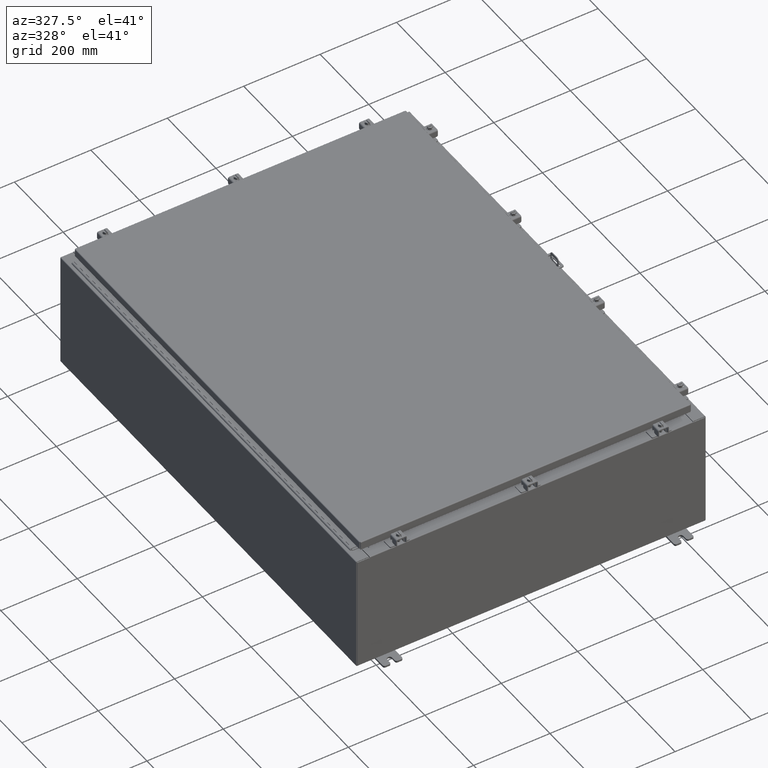
[diagram: clean part render]
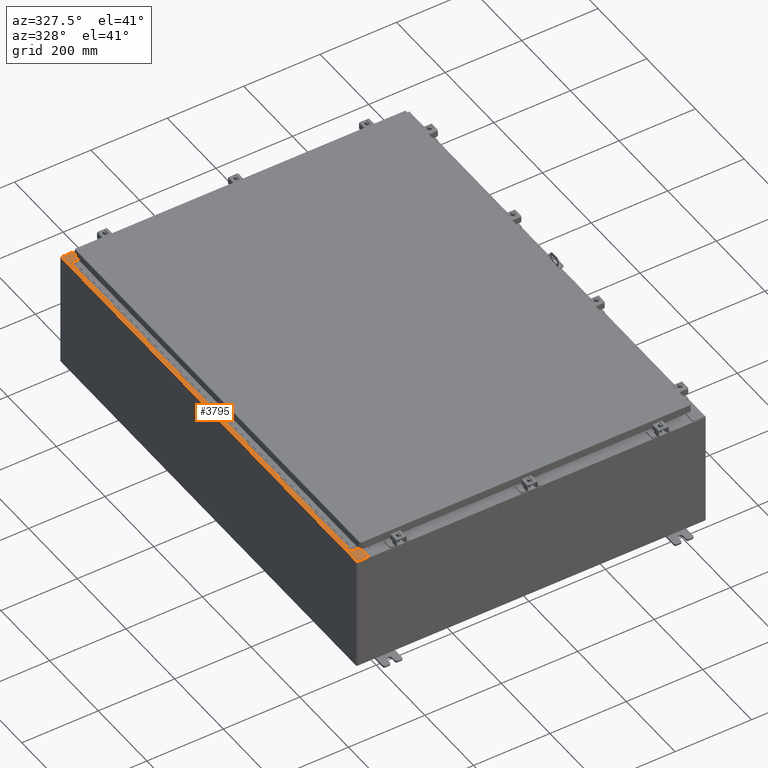
[diagram: same view with one face highlighted and labeled with its STEP entity id]
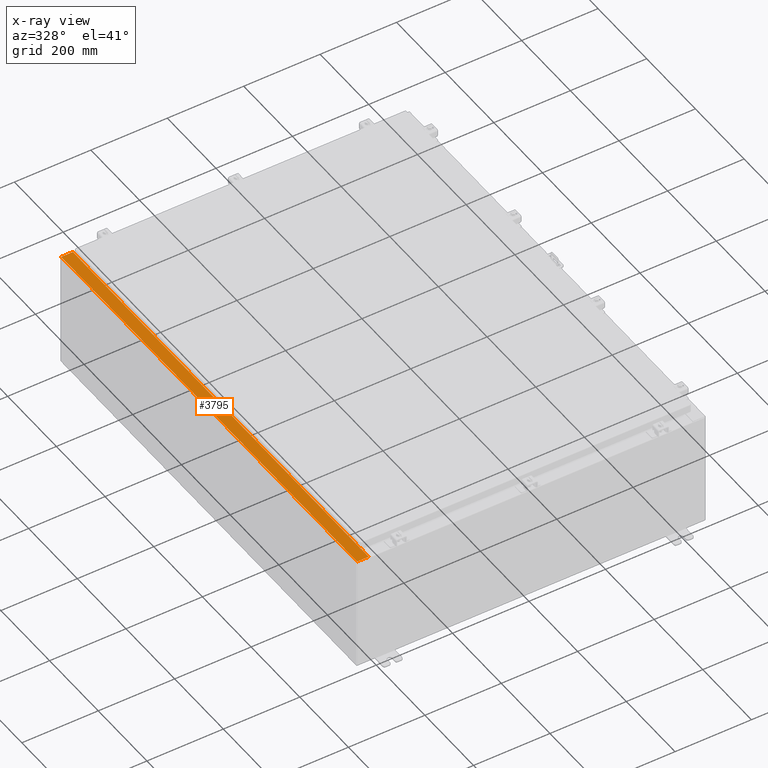
[diagram: x-ray of the same camera — body ghosted, the highlighted face saturated]
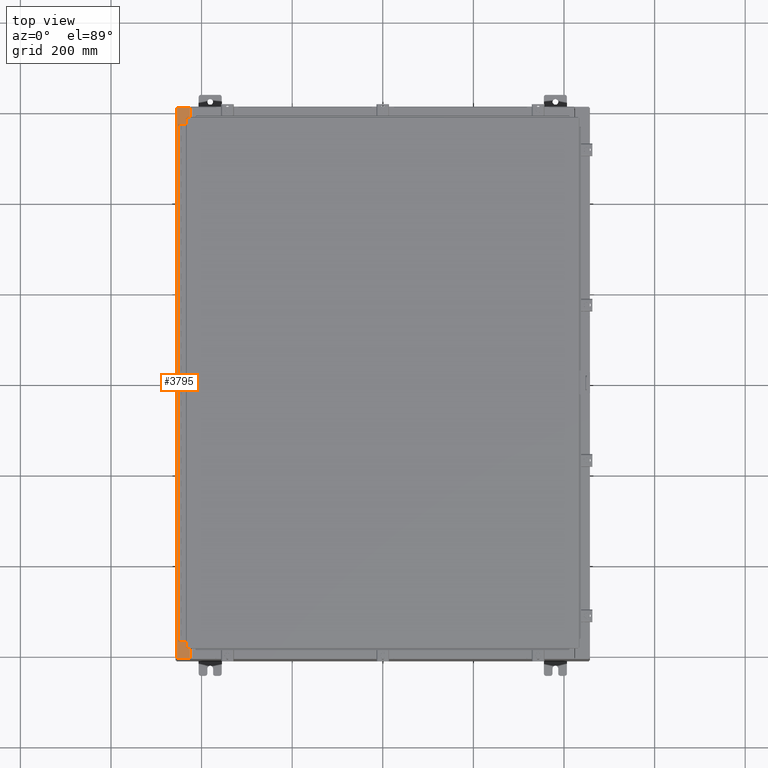
[diagram: same view with one face highlighted and labeled with its STEP entity id]
A machine part, auxiliary view. The second image highlights one B-rep face of the part: STEP entity #3795.
The next image is the same camera in x-ray: the body ghosted, the highlighted face saturated — about 0% of this face is hidden behind the body in this view.
A second angle (top view) of the same face is appended — the face is thin or edge-on in the first view.
In plain terms, the highlighted planar face has unit normal (0, 0, -1).
Its self-contained STEP definition (entity closure, byte-faithful):
#448 = VERTEX_POINT ( 'NONE', #5758 ) ;
#741 = VERTEX_POINT ( 'NONE', #24958 ) ;
#1012 = VERTEX_POINT ( 'NONE', #35386 ) ;
#2481 = LINE ( 'NONE', #40963, #46577 ) ;
#3022 = EDGE_CURVE ( 'NONE', #448, #17920, #8667, .T. ) ;
#3795 = ADVANCED_FACE ( 'NONE', ( #50644 ), #13534, .F. ) ;
#4187 = CIRCLE ( 'NONE', #23462, 0.01867499999999949400 ) ;
#4341 = EDGE_CURVE ( 'NONE', #50712, #16208, #2481, .T. ) ;
#5609 = LINE ( 'NONE', #25935, #25651 ) ;
#5758 = CARTESIAN_POINT ( 'NONE',  ( -16.69970000000004600, -23.92529999999998600, 11.92530000000000900 ) ) ;
#7194 = EDGE_CURVE ( 'NONE', #47060, #11053, #5609, .T. ) ;
#7280 = DIRECTION ( 'NONE',  ( 1.000000000000000000, 0.0000000000000000000, 0.0000000000000000000 ) ) ;
#7644 = ORIENTED_EDGE ( 'NONE', *, *, #27261, .T. ) ;
#7645 = CARTESIAN_POINT ( 'NONE',  ( -16.69970000000004600, 23.92529999999998900, 11.92530000000000900 ) ) ;
#7913 = CARTESIAN_POINT ( 'NONE',  ( -17.91230000000004500, 23.92529999999998900, 11.92530000000000400 ) ) ;
#8667 = LINE ( 'NONE', #18709, #52722 ) ;
#11053 = VERTEX_POINT ( 'NONE', #20915 ) ;
#11597 = EDGE_CURVE ( 'NONE', #1012, #17920, #48693, .T. ) ;
#11620 = CARTESIAN_POINT ( 'NONE',  ( -17.91230000000004500, -23.92529999999998600, 11.92530000000000400 ) ) ;
#11803 = LINE ( 'NONE', #45237, #24504 ) ;
#11878 = CARTESIAN_POINT ( 'NONE',  ( -1.706478848839187100E-013, -23.92530000000005300, 11.92530000000013000 ) ) ;
#13534 = PLANE ( 'NONE',  #54629 ) ;
#14363 = CARTESIAN_POINT ( 'NONE',  ( -16.75005000000004800, 22.61242499999999100, 11.92530000000001200 ) ) ;
#14390 = DIRECTION ( 'NONE',  ( 0.0000000000000000000, 1.000000000000000000, 0.0000000000000000000 ) ) ;
#14928 = EDGE_CURVE ( 'NONE', #43817, #48749, #34189, .T. ) ;
#15277 = DIRECTION ( 'NONE',  ( -0.0000000000000000000, -1.000000000000000000, -0.0000000000000000000 ) ) ;
#15286 = LINE ( 'NONE', #35188, #38001 ) ;
#15977 = VECTOR ( 'NONE', #50926, 39.37007874015748100 ) ;
#16169 = DIRECTION ( 'NONE',  ( 1.000000000000000000, -3.566381192773192400E-015, 7.132762385546384700E-015 ) ) ;
#16208 = VERTEX_POINT ( 'NONE', #7913 ) ;
#17920 = VERTEX_POINT ( 'NONE', #42421 ) ;
#18363 = VECTOR ( 'NONE', #16169, 39.37007874015748100 ) ;
#18655 = AXIS2_PLACEMENT_3D ( 'NONE', #14363, #44232, #18692 ) ;
#18692 = DIRECTION ( 'NONE',  ( 1.000000000000000000, 0.0000000000000000000, 0.0000000000000000000 ) ) ;
#18709 = CARTESIAN_POINT ( 'NONE',  ( -16.69970000000004600, 0.0000000000000000000, 11.92530000000000900 ) ) ;
#18935 = CARTESIAN_POINT ( 'NONE',  ( -16.75005000000004800, -22.59374999999998200, 11.92530000000000900 ) ) ;
#19673 = DIRECTION ( 'NONE',  ( -0.0000000000000000000, 1.000000000000000000, -0.0000000000000000000 ) ) ;
#20575 = ORIENTED_EDGE ( 'NONE', *, *, #23291, .F. ) ;
#20915 = CARTESIAN_POINT ( 'NONE',  ( -16.75005000000004800, 22.63109999999999300, 11.92530000000000900 ) ) ;
#21647 = DIRECTION ( 'NONE',  ( -1.000000000000000000, 0.0000000000000000000, 4.340572780400098900E-014 ) ) ;
#22034 = VECTOR ( 'NONE', #52594, 39.37007874015748100 ) ;
#22351 = CARTESIAN_POINT ( 'NONE',  ( -16.75005000000004800, -22.61242499999998400, 11.92530000000001200 ) ) ;
#22756 = CARTESIAN_POINT ( 'NONE',  ( -16.71270000000004800, -22.59374999999998200, 11.92530000000001200 ) ) ;
#22958 = CARTESIAN_POINT ( 'NONE',  ( -16.69970000000004600, 22.63109999999999300, 11.92530000000000900 ) ) ;
#23291 = EDGE_CURVE ( 'NONE', #741, #44263, #53390, .T. ) ;
#23462 = AXIS2_PLACEMENT_3D ( 'NONE', #22351, #52201, #26634 ) ;
#24504 = VECTOR ( 'NONE', #19673, 39.37007874015748100 ) ;
#24958 = CARTESIAN_POINT ( 'NONE',  ( -16.71270000000004800, -22.59374999999998200, 11.92530000000001200 ) ) ;
#25499 = VECTOR ( 'NONE', #7280, 39.37007874015748100 ) ;
#25651 = VECTOR ( 'NONE', #21647, 39.37007874015748100 ) ;
#25922 = EDGE_CURVE ( 'NONE', #38706, #16208, #11803, .T. ) ;
#25935 = CARTESIAN_POINT ( 'NONE',  ( -16.69970000000004600, 22.63109999999999300, 11.92530000000000900 ) ) ;
#26404 = DIRECTION ( 'NONE',  ( -1.000000000000000000, 0.0000000000000000000, -7.132762385546384700E-015 ) ) ;
#26634 = DIRECTION ( 'NONE',  ( 1.000000000000000000, 0.0000000000000000000, 0.0000000000000000000 ) ) ;
#27261 = EDGE_CURVE ( 'NONE', #38706, #448, #52387, .T. ) ;
#31564 = CARTESIAN_POINT ( 'NONE',  ( -16.71270000000004800, 22.59374999999999300, 11.92530000000001200 ) ) ;
#32597 = ORIENTED_EDGE ( 'NONE', *, *, #3022, .T. ) ;
#33432 = EDGE_CURVE ( 'NONE', #48749, #741, #51197, .T. ) ;
#34189 = LINE ( 'NONE', #54113, #25499 ) ;
#35012 = ORIENTED_EDGE ( 'NONE', *, *, #11597, .F. ) ;
#35188 = CARTESIAN_POINT ( 'NONE',  ( -16.69970000000004600, 0.0000000000000000000, 11.92530000000000900 ) ) ;
#35386 = CARTESIAN_POINT ( 'NONE',  ( -16.75005000000004800, -22.63109999999998200, 11.92530000000000900 ) ) ;
#36826 = ORIENTED_EDGE ( 'NONE', *, *, #25922, .F. ) ;
#37546 = EDGE_CURVE ( 'NONE', #11053, #43817, #40896, .T. ) ;
#37713 = ORIENTED_EDGE ( 'NONE', *, *, #7194, .F. ) ;
#38001 = VECTOR ( 'NONE', #47851, 39.37007874015748100 ) ;
#38014 = ORIENTED_EDGE ( 'NONE', *, *, #37546, .F. ) ;
#38706 = VERTEX_POINT ( 'NONE', #11620 ) ;
#40076 = EDGE_LOOP ( 'NONE', ( #37713, #47630, #51412, #36826, #7644, #32597, #35012, #45201, #20575, #43078, #43539, #38014 ) ) ;
#40896 = CIRCLE ( 'NONE', #18655, 0.01867499999999949400 ) ;
#40963 = CARTESIAN_POINT ( 'NONE',  ( -8.532114493224043100E-014, 23.92529999999998900, 11.92530000000013000 ) ) ;
#41798 = EDGE_CURVE ( 'NONE', #44263, #1012, #4187, .T. ) ;
#42421 = CARTESIAN_POINT ( 'NONE',  ( -16.69970000000004600, -22.63109999999998600, 11.92530000000000900 ) ) ;
#43078 = ORIENTED_EDGE ( 'NONE', *, *, #33432, .F. ) ;
#43539 = ORIENTED_EDGE ( 'NONE', *, *, #14928, .F. ) ;
#43817 = VERTEX_POINT ( 'NONE', #46040 ) ;
#44150 = EDGE_CURVE ( 'NONE', #47060, #50712, #15286, .T. ) ;
#44232 = DIRECTION ( 'NONE',  ( -7.132762385546384700E-015, -0.0000000000000000000, 1.000000000000000000 ) ) ;
#44263 = VERTEX_POINT ( 'NONE', #18935 ) ;
#45201 = ORIENTED_EDGE ( 'NONE', *, *, #41798, .F. ) ;
#45237 = CARTESIAN_POINT ( 'NONE',  ( -17.91230000000004500, 23.92529999999998900, 11.92530000000000400 ) ) ;
#46040 = CARTESIAN_POINT ( 'NONE',  ( -16.75005000000004800, 22.59374999999999300, 11.92530000000000900 ) ) ;
#46577 = VECTOR ( 'NONE', #53794, 39.37007874015748100 ) ;
#46641 = CARTESIAN_POINT ( 'NONE',  ( -16.75005000000004800, -22.63109999999998200, 11.92530000000001200 ) ) ;
#47060 = VERTEX_POINT ( 'NONE', #22958 ) ;
#47630 = ORIENTED_EDGE ( 'NONE', *, *, #44150, .T. ) ;
#47680 = CARTESIAN_POINT ( 'NONE',  ( -8.532114493224043100E-014, 0.0000000000000000000, 11.92530000000013000 ) ) ;
#47851 = DIRECTION ( 'NONE',  ( 0.0000000000000000000, 1.000000000000000000, 0.0000000000000000000 ) ) ;
#48693 = LINE ( 'NONE', #46641, #15977 ) ;
#48749 = VERTEX_POINT ( 'NONE', #31564 ) ;
#49426 = CARTESIAN_POINT ( 'NONE',  ( -16.71270000000004800, 22.59374999999999300, 11.92530000000001200 ) ) ;
#49848 = VECTOR ( 'NONE', #15277, 39.37007874015748100 ) ;
#50644 = FACE_OUTER_BOUND ( 'NONE', #40076, .T. ) ;
#50712 = VERTEX_POINT ( 'NONE', #7645 ) ;
#50926 = DIRECTION ( 'NONE',  ( 1.000000000000000000, 0.0000000000000000000, -4.340572780400098900E-014 ) ) ;
#51197 = LINE ( 'NONE', #49426, #49848 ) ;
#51412 = ORIENTED_EDGE ( 'NONE', *, *, #4341, .T. ) ;
#51966 = DIRECTION ( 'NONE',  ( 7.132762385546384700E-015, 0.0000000000000000000, -1.000000000000000000 ) ) ;
#52201 = DIRECTION ( 'NONE',  ( -7.132762385546384700E-015, -0.0000000000000000000, 1.000000000000000000 ) ) ;
#52387 = LINE ( 'NONE', #11878, #18363 ) ;
#52594 = DIRECTION ( 'NONE',  ( -1.000000000000000000, 0.0000000000000000000, 0.0000000000000000000 ) ) ;
#52722 = VECTOR ( 'NONE', #14390, 39.37007874015748100 ) ;
#53390 = LINE ( 'NONE', #22756, #22034 ) ;
#53794 = DIRECTION ( 'NONE',  ( -1.000000000000000000, 0.0000000000000000000, -7.132762385546384700E-015 ) ) ;
#54113 = CARTESIAN_POINT ( 'NONE',  ( -16.75005000000004800, 22.59374999999999300, 11.92530000000001200 ) ) ;
#54629 = AXIS2_PLACEMENT_3D ( 'NONE', #47680, #51966, #26404 ) ;